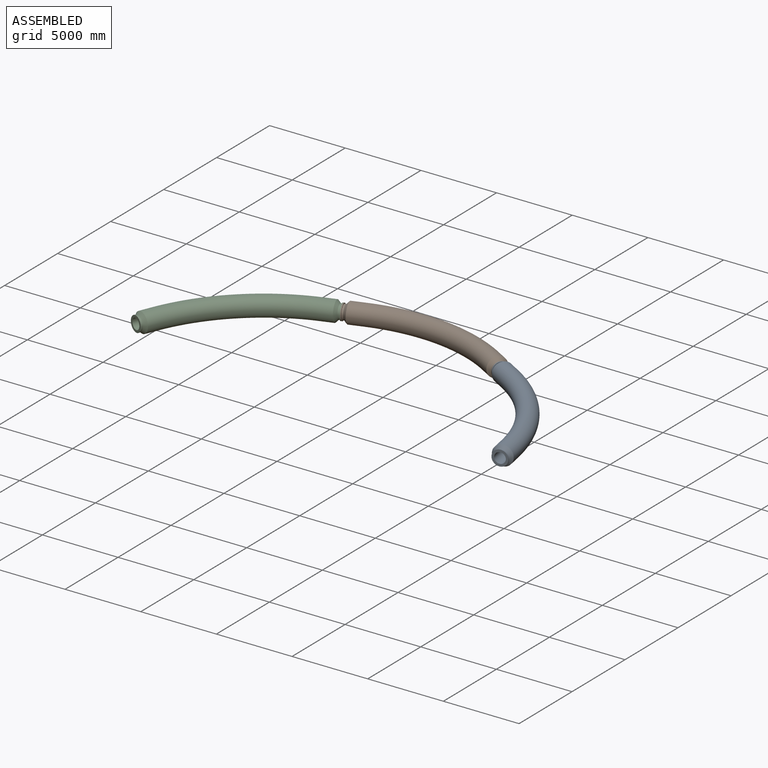
[diagram: assembled view]
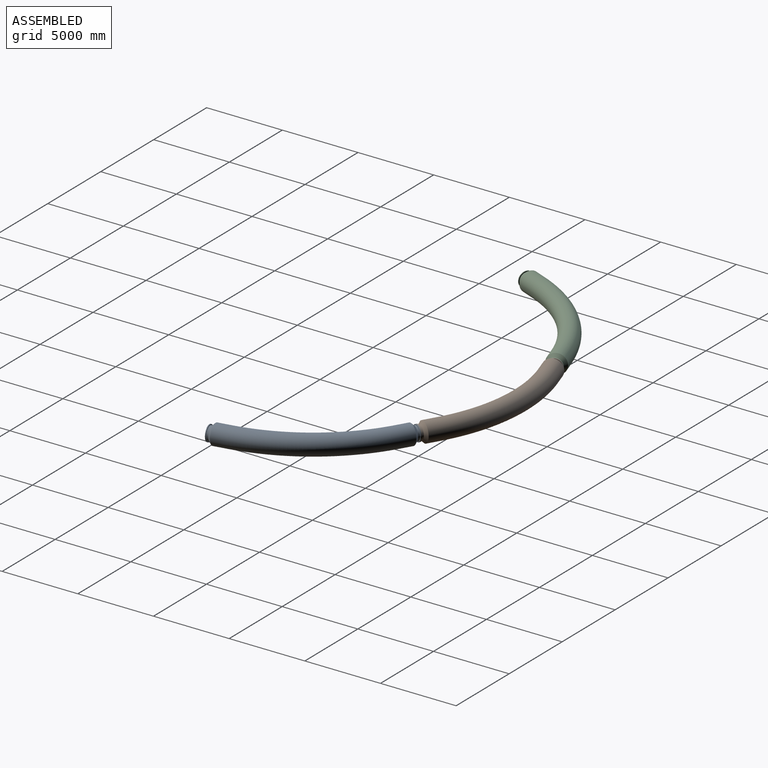
[diagram: assembled view, second angle]
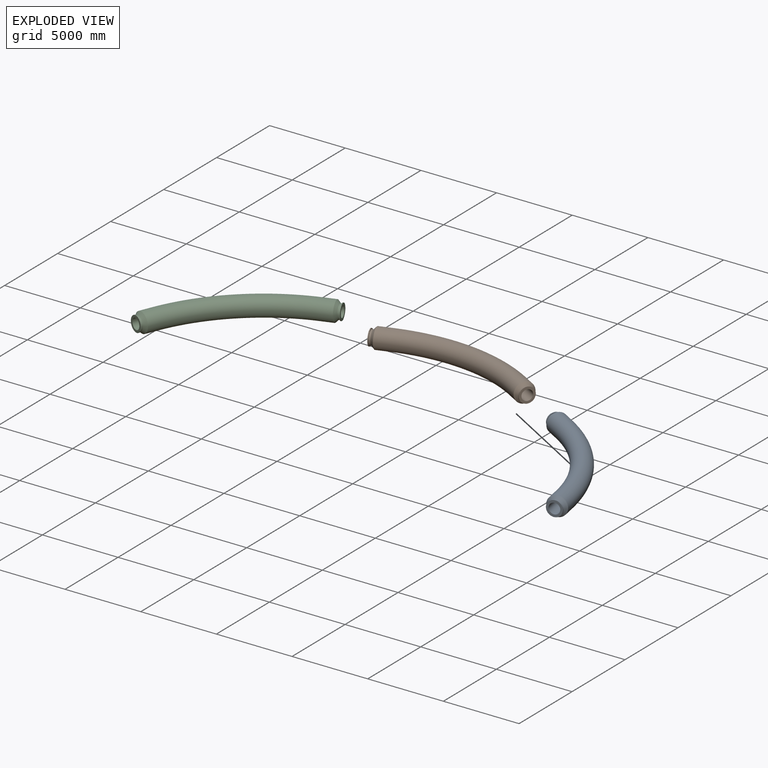
[diagram: exploded view]
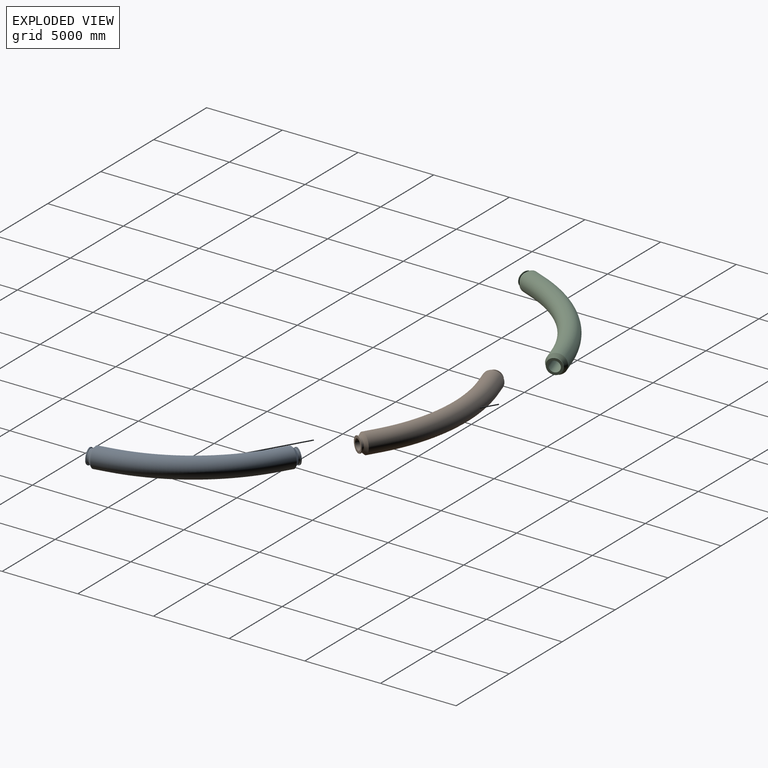
[diagram: exploded view, second angle]
ASSEMBLY  parts=3 mates=2
PART A: 16 faces, bbox 6626x10711.3x1300 mm
  f0: torus R=11000mm, axis (0,0,1), area 20671679.7mm2, adj f3,f9
  f1: torus R=11000mm, axis (0,0,1), area 38390262.2mm2, adj f4,f15
  f2: plane 1015x1015mm, normal (0,-1,0), area 424291.7mm2, adj f3,f8
  f3: cylinder r=350mm len=1200mm, axis (0,-1,0), area 2638937.8mm2, adj f0,f2
  f4: cylinder r=650mm len=1300mm, axis (0,-1,0), area 3420409mm2, adj f1,f5
  f5: cone r=452.5mm half-angle=45deg, axis (0,1,0), area 967410mm2, adj f4,f6
  f6: cylinder r=452.5mm len=905mm, axis (0,-1,0), area 312745.5mm2, adj f5,f7
  f7: plane 1015x1015mm, normal (0,1,0), area 165876.1mm2, adj f6,f8
  f8: cylinder r=507.5mm len=1015mm, axis (0,-1,0), area 175379.4mm2, adj f2,f7
  f9: cylinder r=350mm len=1364.72mm, axis (0.75,-0.66,0), area 2638937.8mm2, adj f0,f10
  f10: plane 1015x765.59mm, normal (-0.75,0.66,0), area 424291.7mm2, adj f9,f11
  f11: cylinder r=507.5mm len=1015mm, axis (0.75,-0.66,0), area 175379.4mm2, adj f10,f12
  f12: plane 1015x765.59mm, normal (0.75,-0.66,0), area 165876.1mm2, adj f11,f13
  f13: cylinder r=452.5mm len=905mm, axis (0.75,-0.66,0), area 312745.5mm2, adj f12,f14
  f14: cone r=452.5mm half-angle=45deg, axis (0.75,-0.66,0), area 967410mm2, adj f13,f15
  f15: cylinder r=650mm len=1530.42mm, axis (0.75,-0.66,0), area 3420409mm2, adj f1,f14
PART B: same geometry as A
PART C: same geometry as A
PLACE A rot(axis=(0,0,1),10.5deg) t=(992.62,347.2,0)mm
PLACE B rot(axis=(0,0,1),59.5deg) t=(-5485.17,9607.16,0)mm
PLACE C rot(axis=(0,0,1),108.4deg) t=(-16722.77,10800.88,0)mm
MATE revolute C.f3 <-> B.f14  axis (0.95,0.32,0) through (-16722.77,10800.88,0)mm
MATE revolute B.f3 <-> A.f14  axis (0.86,-0.51,0) through (-5485.17,9607.16,0)mm
